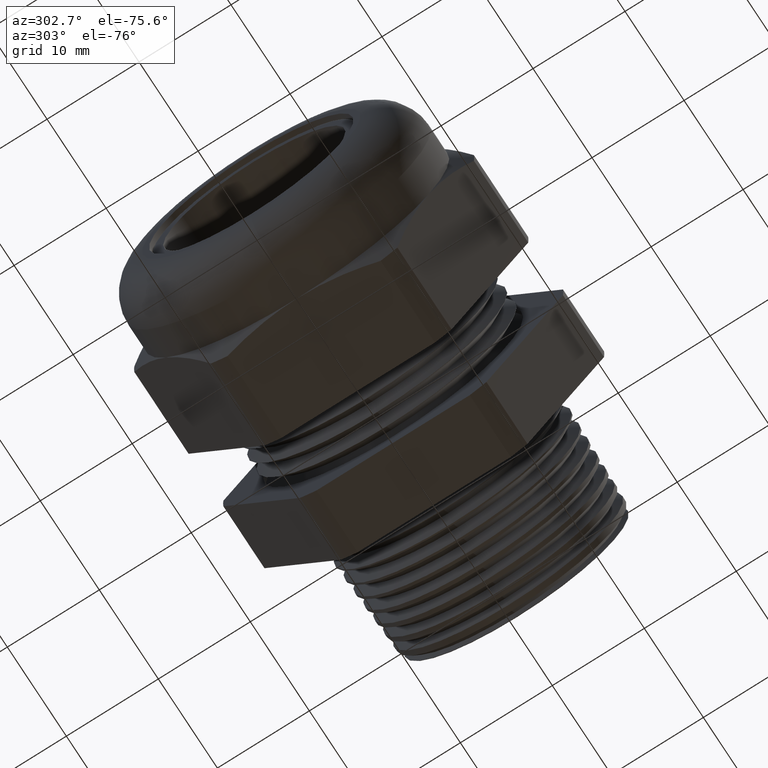
[diagram: clean part render]
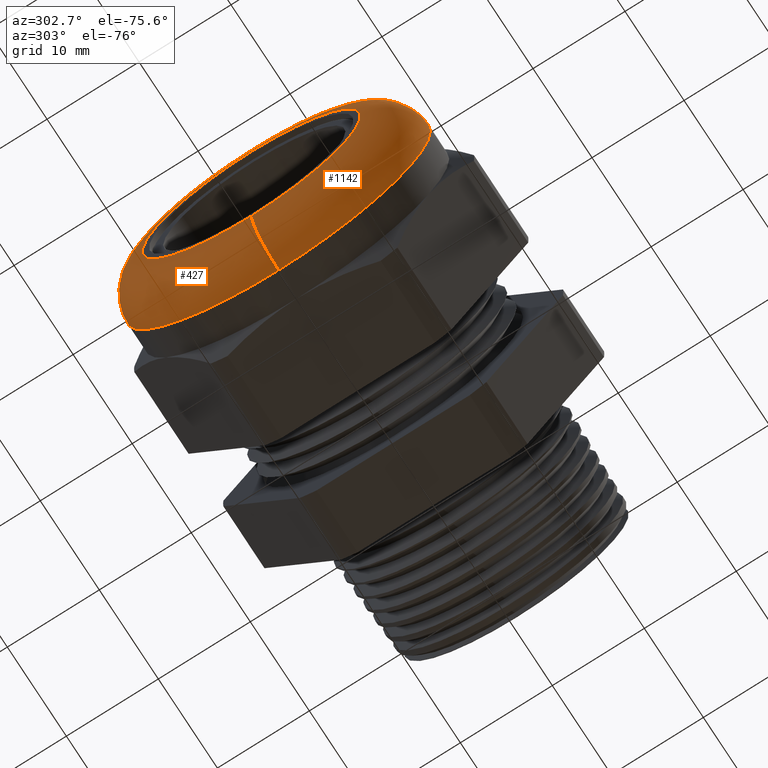
[diagram: same view with one multi-face feature highlighted, each face labeled with its STEP entity id]
A machine part, auxiliary view. The highlighted faces form ONE feature: a constant-radius fillet chain: 2 tangent blend faces with common blend radius 4.6482 mm. The faces share edges in the B-rep.
Their STEP definitions:
[1] entity #1142 (Torus):
#411 = EDGE_CURVE ( 'NONE', #419, #492, #2131, .T. ) ;
#417 = EDGE_CURVE ( 'NONE', #423, #418, #2121, .T. ) ;
#418 = VERTEX_POINT ( 'NONE', #2116 ) ;
#419 = VERTEX_POINT ( 'NONE', #2115 ) ;
#423 = VERTEX_POINT ( 'NONE', #2164 ) ;
#492 = VERTEX_POINT ( 'NONE', #2297 ) ;
#993 = EDGE_CURVE ( 'NONE', #419, #423, #3291, .T. ) ;
#1121 = EDGE_CURVE ( 'NONE', #418, #492, #3444, .T. ) ;
#1142 = ADVANCED_FACE ( 'NONE', ( #3475 ), #3474, .T. ) ;
#1143 = EDGE_LOOP ( 'NONE', ( #1144, #1145, #1146, #1147 ) ) ;
#1144 = ORIENTED_EDGE ( 'NONE', *, *, #417, .F. ) ;
#1145 = ORIENTED_EDGE ( 'NONE', *, *, #993, .F. ) ;
#1146 = ORIENTED_EDGE ( 'NONE', *, *, #411, .T. ) ;
#1147 = ORIENTED_EDGE ( 'NONE', *, *, #1121, .F. ) ;
#2115 = CARTESIAN_POINT ( 'NONE',  ( -1.220000000000000000, 0.0000000000000000000, -0.4669999999999998000 ) ) ;
#2116 = CARTESIAN_POINT ( 'NONE',  ( -1.036999999999999900, 0.0000000000000000000, 0.6499999999999999100 ) ) ;
#2117 = DIRECTION ( 'NONE',  ( 0.0000000000000000000, 1.224646799147353000E-016, 1.000000000000000000 ) ) ;
#2118 = DIRECTION ( 'NONE',  ( 0.0000000000000000000, 1.000000000000000000, -1.224646799147353200E-016 ) ) ;
#2119 = CARTESIAN_POINT ( 'NONE',  ( -1.036999999999999900, 5.719100552018136700E-017, 0.4669999999999998000 ) ) ;
#2120 = AXIS2_PLACEMENT_3D ( 'NONE', #2119, #2118, #2117 ) ;
#2121 = CIRCLE ( 'NONE', #2120, 0.1830000000000000800 ) ;
#2127 = DIRECTION ( 'NONE',  ( 0.0000000000000000000, 0.0000000000000000000, -1.000000000000000000 ) ) ;
#2128 = DIRECTION ( 'NONE',  ( 0.0000000000000000000, -1.000000000000000000, 0.0000000000000000000 ) ) ;
#2129 = CARTESIAN_POINT ( 'NONE',  ( -1.036999999999999900, 0.0000000000000000000, -0.4669999999999998000 ) ) ;
#2130 = AXIS2_PLACEMENT_3D ( 'NONE', #2129, #2128, #2127 ) ;
#2131 = CIRCLE ( 'NONE', #2130, 0.1830000000000000800 ) ;
#2164 = CARTESIAN_POINT ( 'NONE',  ( -1.220000000000000000, 6.839652373237965500E-017, 0.4669999999999998000 ) ) ;
#2297 = CARTESIAN_POINT ( 'NONE',  ( -1.036999999999999900, 7.960204194457794200E-017, -0.6499999999999999100 ) ) ;
#3287 = DIRECTION ( 'NONE',  ( 0.0000000000000000000, 0.0000000000000000000, -1.000000000000000000 ) ) ;
#3288 = DIRECTION ( 'NONE',  ( -1.000000000000000000, 0.0000000000000000000, 0.0000000000000000000 ) ) ;
#3289 = CARTESIAN_POINT ( 'NONE',  ( -1.220000000000000000, 0.0000000000000000000, 0.0000000000000000000 ) ) ;
#3290 = AXIS2_PLACEMENT_3D ( 'NONE', #3289, #3288, #3287 ) ;
#3291 = CIRCLE ( 'NONE', #3290, 0.4669999999999998000 ) ;
#3440 = DIRECTION ( 'NONE',  ( 0.0000000000000000000, 0.0000000000000000000, -1.000000000000000000 ) ) ;
#3441 = DIRECTION ( 'NONE',  ( 1.000000000000000000, 0.0000000000000000000, 0.0000000000000000000 ) ) ;
#3442 = CARTESIAN_POINT ( 'NONE',  ( -1.036999999999999900, 0.0000000000000000000, 0.0000000000000000000 ) ) ;
#3443 = AXIS2_PLACEMENT_3D ( 'NONE', #3442, #3441, #3440 ) ;
#3444 = CIRCLE ( 'NONE', #3443, 0.6499999999999999100 ) ;
#3469 = DIRECTION ( 'NONE',  ( 0.0000000000000000000, 0.0000000000000000000, -1.000000000000000000 ) ) ;
#3470 = DIRECTION ( 'NONE',  ( 1.000000000000000000, 0.0000000000000000000, 0.0000000000000000000 ) ) ;
#3471 = CARTESIAN_POINT ( 'NONE',  ( -1.036999999999999900, 0.0000000000000000000, 0.0000000000000000000 ) ) ;
#3472 = AXIS2_PLACEMENT_3D ( 'NONE', #3471, #3470, #3469 ) ;
#3474 = TOROIDAL_SURFACE ( 'NONE', #3472, 0.4669999999999998000, 0.1830000000000000800 ) ;
#3475 = FACE_OUTER_BOUND ( 'NONE', #1143, .T. ) ;
[2] entity #427 (Torus):
#411 = EDGE_CURVE ( 'NONE', #419, #492, #2131, .T. ) ;
#412 = EDGE_CURVE ( 'NONE', #492, #418, #2126, .T. ) ;
#413 = ORIENTED_EDGE ( 'NONE', *, *, #412, .F. ) ;
#416 = ORIENTED_EDGE ( 'NONE', *, *, #417, .T. ) ;
#417 = EDGE_CURVE ( 'NONE', #423, #418, #2121, .T. ) ;
#418 = VERTEX_POINT ( 'NONE', #2116 ) ;
#419 = VERTEX_POINT ( 'NONE', #2115 ) ;
#423 = VERTEX_POINT ( 'NONE', #2164 ) ;
#425 = ORIENTED_EDGE ( 'NONE', *, *, #426, .F. ) ;
#426 = EDGE_CURVE ( 'NONE', #423, #419, #2163, .T. ) ;
#427 = ADVANCED_FACE ( 'NONE', ( #2158 ), #2157, .T. ) ;
#429 = EDGE_LOOP ( 'NONE', ( #425, #416, #413, #491 ) ) ;
#491 = ORIENTED_EDGE ( 'NONE', *, *, #411, .F. ) ;
#492 = VERTEX_POINT ( 'NONE', #2297 ) ;
#2115 = CARTESIAN_POINT ( 'NONE',  ( -1.220000000000000000, 0.0000000000000000000, -0.4669999999999998000 ) ) ;
#2116 = CARTESIAN_POINT ( 'NONE',  ( -1.036999999999999900, 0.0000000000000000000, 0.6499999999999999100 ) ) ;
#2117 = DIRECTION ( 'NONE',  ( 0.0000000000000000000, 1.224646799147353000E-016, 1.000000000000000000 ) ) ;
#2118 = DIRECTION ( 'NONE',  ( 0.0000000000000000000, 1.000000000000000000, -1.224646799147353200E-016 ) ) ;
#2119 = CARTESIAN_POINT ( 'NONE',  ( -1.036999999999999900, 5.719100552018136700E-017, 0.4669999999999998000 ) ) ;
#2120 = AXIS2_PLACEMENT_3D ( 'NONE', #2119, #2118, #2117 ) ;
#2121 = CIRCLE ( 'NONE', #2120, 0.1830000000000000800 ) ;
#2122 = DIRECTION ( 'NONE',  ( 0.0000000000000000000, 0.0000000000000000000, -1.000000000000000000 ) ) ;
#2123 = DIRECTION ( 'NONE',  ( 1.000000000000000000, 0.0000000000000000000, 0.0000000000000000000 ) ) ;
#2124 = CARTESIAN_POINT ( 'NONE',  ( -1.036999999999999900, 0.0000000000000000000, 0.0000000000000000000 ) ) ;
#2125 = AXIS2_PLACEMENT_3D ( 'NONE', #2124, #2123, #2122 ) ;
#2126 = CIRCLE ( 'NONE', #2125, 0.6499999999999999100 ) ;
#2127 = DIRECTION ( 'NONE',  ( 0.0000000000000000000, 0.0000000000000000000, -1.000000000000000000 ) ) ;
#2128 = DIRECTION ( 'NONE',  ( 0.0000000000000000000, -1.000000000000000000, 0.0000000000000000000 ) ) ;
#2129 = CARTESIAN_POINT ( 'NONE',  ( -1.036999999999999900, 0.0000000000000000000, -0.4669999999999998000 ) ) ;
#2130 = AXIS2_PLACEMENT_3D ( 'NONE', #2129, #2128, #2127 ) ;
#2131 = CIRCLE ( 'NONE', #2130, 0.1830000000000000800 ) ;
#2153 = DIRECTION ( 'NONE',  ( 0.0000000000000000000, 0.0000000000000000000, -1.000000000000000000 ) ) ;
#2154 = DIRECTION ( 'NONE',  ( 1.000000000000000000, 0.0000000000000000000, 0.0000000000000000000 ) ) ;
#2155 = CARTESIAN_POINT ( 'NONE',  ( -1.036999999999999900, 0.0000000000000000000, 0.0000000000000000000 ) ) ;
#2156 = AXIS2_PLACEMENT_3D ( 'NONE', #2155, #2154, #2153 ) ;
#2157 = TOROIDAL_SURFACE ( 'NONE', #2156, 0.4669999999999998000, 0.1830000000000000800 ) ;
#2158 = FACE_OUTER_BOUND ( 'NONE', #429, .T. ) ;
#2159 = DIRECTION ( 'NONE',  ( 0.0000000000000000000, 0.0000000000000000000, -1.000000000000000000 ) ) ;
#2160 = DIRECTION ( 'NONE',  ( -1.000000000000000000, 0.0000000000000000000, 0.0000000000000000000 ) ) ;
#2161 = CARTESIAN_POINT ( 'NONE',  ( -1.220000000000000000, 0.0000000000000000000, 0.0000000000000000000 ) ) ;
#2162 = AXIS2_PLACEMENT_3D ( 'NONE', #2161, #2160, #2159 ) ;
#2163 = CIRCLE ( 'NONE', #2162, 0.4669999999999998000 ) ;
#2164 = CARTESIAN_POINT ( 'NONE',  ( -1.220000000000000000, 6.839652373237965500E-017, 0.4669999999999998000 ) ) ;
#2297 = CARTESIAN_POINT ( 'NONE',  ( -1.036999999999999900, 7.960204194457794200E-017, -0.6499999999999999100 ) ) ;